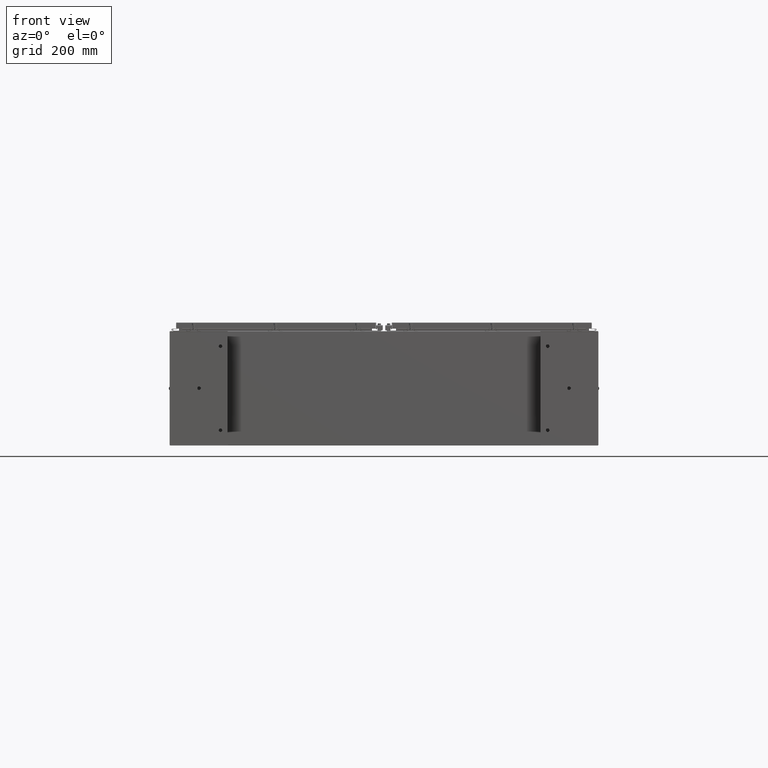
[diagram: clean part render]
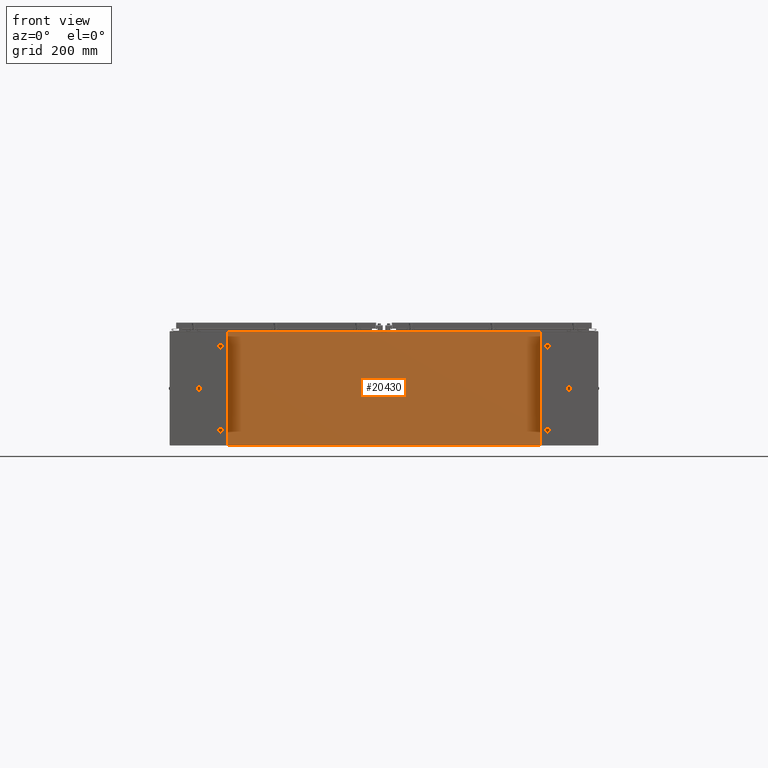
[diagram: same view with one face highlighted and labeled with its STEP entity id]
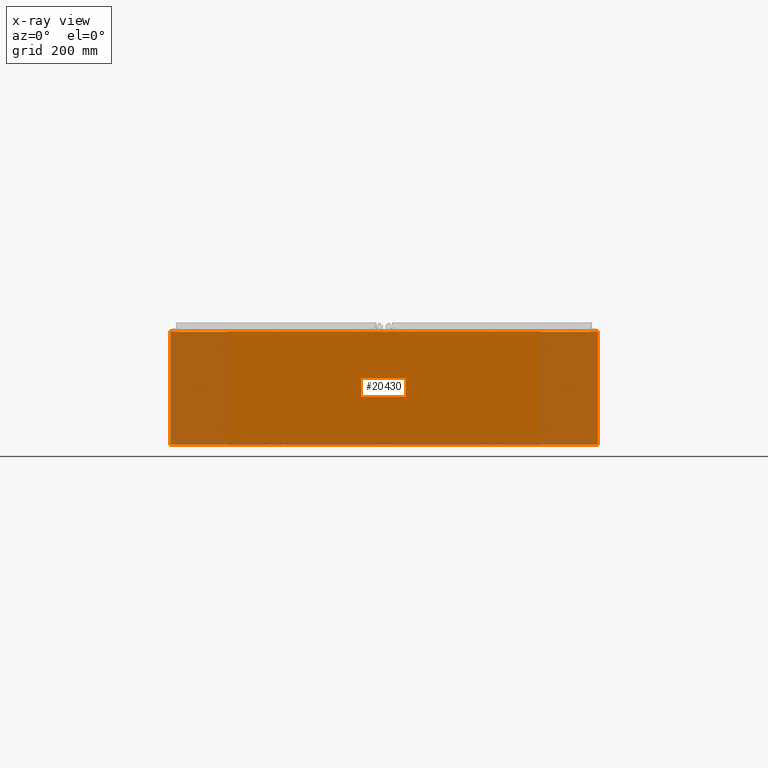
[diagram: x-ray of the same camera — body ghosted, the highlighted face saturated]
A machine part, front view. The second image highlights one B-rep face of the part: STEP entity #20430.
The next image is the same camera in x-ray: the body ghosted, the highlighted face saturated — about 27% of this face is hidden behind the body in this view.
In plain terms, the highlighted planar face has unit normal (-0, 1, 0).
Its self-contained STEP definition (entity closure, byte-faithful):
#212 = VECTOR ( 'NONE', #46445, 39.37007874015748100 ) ;
#957 = LINE ( 'NONE', #69661, #27947 ) ;
#965 = ORIENTED_EDGE ( 'NONE', *, *, #63350, .F. ) ;
#1408 = LINE ( 'NONE', #64831, #44441 ) ;
#2003 = CARTESIAN_POINT ( 'NONE',  ( -29.92530000000000000, 0.0000000000000000000, -7.925300000000000900 ) ) ;
#2523 = EDGE_CURVE ( 'NONE', #48517, #57524, #27351, .T. ) ;
#2910 = ORIENTED_EDGE ( 'NONE', *, *, #32256, .T. ) ;
#6062 = CARTESIAN_POINT ( 'NONE',  ( -28.67454999999998600, 0.0000000000000000000, 7.925299999999998200 ) ) ;
#6198 = CARTESIAN_POINT ( 'NONE',  ( 29.92530000000000000, 0.0000000000000000000, 7.925299999999998200 ) ) ;
#6859 = VERTEX_POINT ( 'NONE', #2003 ) ;
#9303 = VERTEX_POINT ( 'NONE', #47807 ) ;
#9324 = VECTOR ( 'NONE', #61717, 39.37007874015748100 ) ;
#9711 = CARTESIAN_POINT ( 'NONE',  ( -28.67454999999998600, 0.0000000000000000000, 7.874949999999998300 ) ) ;
#10021 = CIRCLE ( 'NONE', #47351, 0.01867499999999949400 ) ;
#10361 = DIRECTION ( 'NONE',  ( 1.000000000000000000, 0.0000000000000000000, 0.0000000000000000000 ) ) ;
#11397 = ORIENTED_EDGE ( 'NONE', *, *, #44978, .F. ) ;
#12011 = EDGE_CURVE ( 'NONE', #48517, #54919, #39703, .T. ) ;
#12535 = CARTESIAN_POINT ( 'NONE',  ( 28.63720000000000000, 0.0000000000000000000, 0.0000000000000000000 ) ) ;
#13962 = ORIENTED_EDGE ( 'NONE', *, *, #53232, .T. ) ;
#14240 = CARTESIAN_POINT ( 'NONE',  ( -28.63719999999998900, -7.171100983368691200E-016, 7.912299999999998300 ) ) ;
#15672 = EDGE_CURVE ( 'NONE', #24030, #61111, #28879, .T. ) ;
#15897 = CARTESIAN_POINT ( 'NONE',  ( -29.92530000000000000, 0.0000000000000000000, 7.925299999999998200 ) ) ;
#16664 = PLANE ( 'NONE',  #51225 ) ;
#16972 = ORIENTED_EDGE ( 'NONE', *, *, #21561, .T. ) ;
#17950 = DIRECTION ( 'NONE',  ( 0.0000000000000000000, 0.0000000000000000000, 1.000000000000000000 ) ) ;
#18408 = CARTESIAN_POINT ( 'NONE',  ( -28.63719999999998900, -0.0000000000000000000, 7.874949999999998300 ) ) ;
#19534 = VECTOR ( 'NONE', #57387, 39.37007874015748100 ) ;
#20430 = ADVANCED_FACE ( 'NONE', ( #39131 ), #16664, .F. ) ;
#21067 = LINE ( 'NONE', #46305, #48046 ) ;
#21561 = EDGE_CURVE ( 'NONE', #6859, #58888, #57406, .T. ) ;
#22094 = DIRECTION ( 'NONE',  ( 0.0000000000000000000, -1.000000000000000000, 0.0000000000000000000 ) ) ;
#22442 = CARTESIAN_POINT ( 'NONE',  ( 28.67455000000136800, 0.0000000000000000000, 4.978558848808995900E-012 ) ) ;
#23397 = EDGE_CURVE ( 'NONE', #57524, #40207, #10021, .T. ) ;
#23497 = VECTOR ( 'NONE', #10361, 39.37007874015748100 ) ;
#24030 = VERTEX_POINT ( 'NONE', #14240 ) ;
#25117 = LINE ( 'NONE', #12535, #32680 ) ;
#25170 = DIRECTION ( 'NONE',  ( -0.0000000000000000000, 1.000000000000000000, -0.0000000000000000000 ) ) ;
#25229 = CARTESIAN_POINT ( 'NONE',  ( -29.92530000000000000, 0.0000000000000000000, 7.925299999999998200 ) ) ;
#27351 = LINE ( 'NONE', #22442, #41692 ) ;
#27947 = VECTOR ( 'NONE', #32103, 39.37007874015748100 ) ;
#28675 = CARTESIAN_POINT ( 'NONE',  ( 28.67454999999997900, 0.0000000000000000000, 7.925299999999998200 ) ) ;
#28879 = LINE ( 'NONE', #56952, #212 ) ;
#28970 = CARTESIAN_POINT ( 'NONE',  ( 28.63720000000000000, -7.171100983368691200E-016, 7.912299999999998300 ) ) ;
#29484 = CARTESIAN_POINT ( 'NONE',  ( -29.92530000000000000, 0.0000000000000000000, 7.925299999999998200 ) ) ;
#30471 = CIRCLE ( 'NONE', #63174, 0.01867499999999949400 ) ;
#30817 = CARTESIAN_POINT ( 'NONE',  ( -28.65587499999998800, 0.0000000000000000000, 7.874949999999998300 ) ) ;
#31254 = ORIENTED_EDGE ( 'NONE', *, *, #23397, .F. ) ;
#32103 = DIRECTION ( 'NONE',  ( -1.000000000000000000, -0.0000000000000000000, -0.0000000000000000000 ) ) ;
#32256 = EDGE_CURVE ( 'NONE', #58888, #40856, #50434, .T. ) ;
#32465 = ORIENTED_EDGE ( 'NONE', *, *, #39780, .T. ) ;
#32621 = DIRECTION ( 'NONE',  ( 1.000000000000000000, 0.0000000000000000000, 0.0000000000000000000 ) ) ;
#32680 = VECTOR ( 'NONE', #17950, 39.37007874015748100 ) ;
#33039 = DIRECTION ( 'NONE',  ( 1.736229112160002000E-013, 0.0000000000000000000, -1.000000000000000000 ) ) ;
#35583 = LINE ( 'NONE', #62831, #19534 ) ;
#36263 = DIRECTION ( 'NONE',  ( 0.0000000000000000000, 0.0000000000000000000, -1.000000000000000000 ) ) ;
#38616 = ORIENTED_EDGE ( 'NONE', *, *, #58684, .F. ) ;
#39131 = FACE_OUTER_BOUND ( 'NONE', #58519, .T. ) ;
#39703 = LINE ( 'NONE', #29484, #9324 ) ;
#39780 = EDGE_CURVE ( 'NONE', #24030, #69138, #1408, .T. ) ;
#40207 = VERTEX_POINT ( 'NONE', #59803 ) ;
#40856 = VERTEX_POINT ( 'NONE', #6062 ) ;
#41141 = EDGE_CURVE ( 'NONE', #54919, #9303, #21067, .T. ) ;
#41692 = VECTOR ( 'NONE', #33039, 39.37007874015748100 ) ;
#42693 = CARTESIAN_POINT ( 'NONE',  ( -29.92530000000000000, 0.0000000000000000000, 7.925299999999998200 ) ) ;
#43187 = VECTOR ( 'NONE', #64359, 39.37007874015748100 ) ;
#44441 = VECTOR ( 'NONE', #32621, 39.37007874015748100 ) ;
#44978 = EDGE_CURVE ( 'NONE', #46246, #40856, #35583, .T. ) ;
#45487 = ORIENTED_EDGE ( 'NONE', *, *, #2523, .F. ) ;
#46246 = VERTEX_POINT ( 'NONE', #9711 ) ;
#46305 = CARTESIAN_POINT ( 'NONE',  ( 29.92530000000000000, 0.0000000000000000000, 7.925299999999998200 ) ) ;
#46445 = DIRECTION ( 'NONE',  ( 0.0000000000000000000, 0.0000000000000000000, -1.000000000000000000 ) ) ;
#47351 = AXIS2_PLACEMENT_3D ( 'NONE', #57355, #25170, #62798 ) ;
#47405 = ORIENTED_EDGE ( 'NONE', *, *, #12011, .T. ) ;
#47807 = CARTESIAN_POINT ( 'NONE',  ( 29.92530000000000000, 0.0000000000000000000, -7.925300000000000900 ) ) ;
#47841 = CARTESIAN_POINT ( 'NONE',  ( 28.67455000000000000, 0.0000000000000000000, 7.874949999999998300 ) ) ;
#48046 = VECTOR ( 'NONE', #51680, 39.37007874015748100 ) ;
#48517 = VERTEX_POINT ( 'NONE', #28675 ) ;
#50434 = LINE ( 'NONE', #42693, #23497 ) ;
#51225 = AXIS2_PLACEMENT_3D ( 'NONE', #54324, #22094, #59713 ) ;
#51680 = DIRECTION ( 'NONE',  ( 0.0000000000000000000, 0.0000000000000000000, -1.000000000000000000 ) ) ;
#53232 = EDGE_CURVE ( 'NONE', #9303, #6859, #957, .T. ) ;
#54324 = CARTESIAN_POINT ( 'NONE',  ( 0.0000000000000000000, 0.0000000000000000000, 0.0000000000000000000 ) ) ;
#54919 = VERTEX_POINT ( 'NONE', #6198 ) ;
#56952 = CARTESIAN_POINT ( 'NONE',  ( -28.63719999999998900, -0.0000000000000000000, 0.0000000000000000000 ) ) ;
#57355 = CARTESIAN_POINT ( 'NONE',  ( 28.65587500000000200, 0.0000000000000000000, 7.874949999999998300 ) ) ;
#57387 = DIRECTION ( 'NONE',  ( 0.0000000000000000000, 0.0000000000000000000, 1.000000000000000000 ) ) ;
#57406 = LINE ( 'NONE', #15897, #43187 ) ;
#57524 = VERTEX_POINT ( 'NONE', #47841 ) ;
#58519 = EDGE_LOOP ( 'NONE', ( #11397, #965, #64334, #32465, #38616, #31254, #45487, #47405, #67283, #13962, #16972, #2910 ) ) ;
#58684 = EDGE_CURVE ( 'NONE', #40207, #69138, #25117, .T. ) ;
#58888 = VERTEX_POINT ( 'NONE', #25229 ) ;
#59713 = DIRECTION ( 'NONE',  ( 0.0000000000000000000, -0.0000000000000000000, -1.000000000000000000 ) ) ;
#59803 = CARTESIAN_POINT ( 'NONE',  ( 28.63720000000000000, 0.0000000000000000000, 7.874949999999998300 ) ) ;
#61111 = VERTEX_POINT ( 'NONE', #18408 ) ;
#61717 = DIRECTION ( 'NONE',  ( 1.000000000000000000, 0.0000000000000000000, 0.0000000000000000000 ) ) ;
#62798 = DIRECTION ( 'NONE',  ( 0.0000000000000000000, 0.0000000000000000000, -1.000000000000000000 ) ) ;
#62831 = CARTESIAN_POINT ( 'NONE',  ( -28.67454999999998600, -0.0000000000000000000, 0.0000000000000000000 ) ) ;
#63174 = AXIS2_PLACEMENT_3D ( 'NONE', #30817, #68395, #36263 ) ;
#63350 = EDGE_CURVE ( 'NONE', #61111, #46246, #30471, .T. ) ;
#64334 = ORIENTED_EDGE ( 'NONE', *, *, #15672, .F. ) ;
#64359 = DIRECTION ( 'NONE',  ( -0.0000000000000000000, -0.0000000000000000000, 1.000000000000000000 ) ) ;
#64831 = CARTESIAN_POINT ( 'NONE',  ( -28.63719999999999300, -7.171100983368691200E-016, 7.912299999999998300 ) ) ;
#67283 = ORIENTED_EDGE ( 'NONE', *, *, #41141, .T. ) ;
#68395 = DIRECTION ( 'NONE',  ( -0.0000000000000000000, 1.000000000000000000, -0.0000000000000000000 ) ) ;
#69138 = VERTEX_POINT ( 'NONE', #28970 ) ;
#69661 = CARTESIAN_POINT ( 'NONE',  ( -29.92530000000000000, 0.0000000000000000000, -7.925300000000000900 ) ) ;